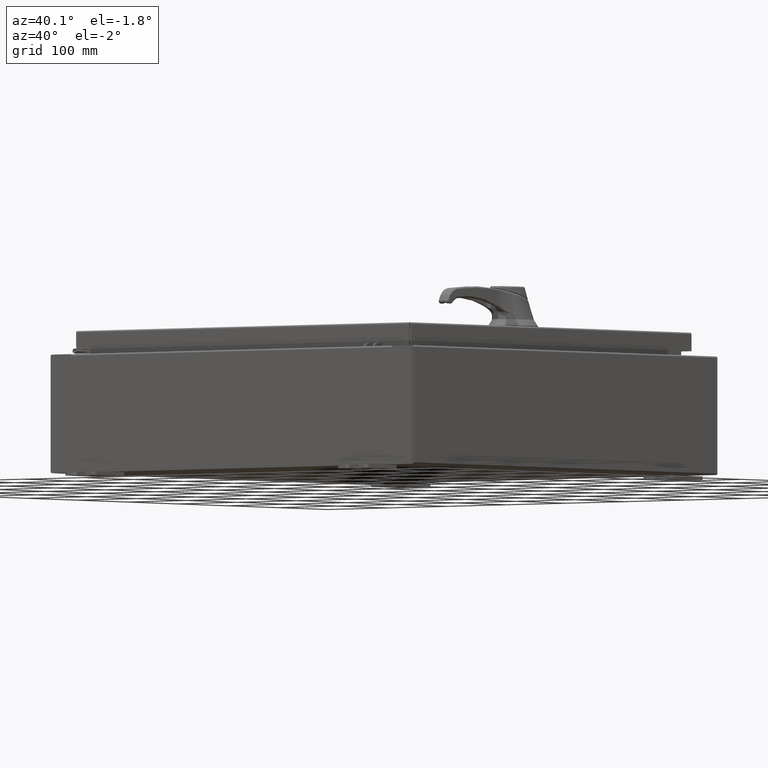
[diagram: clean part render]
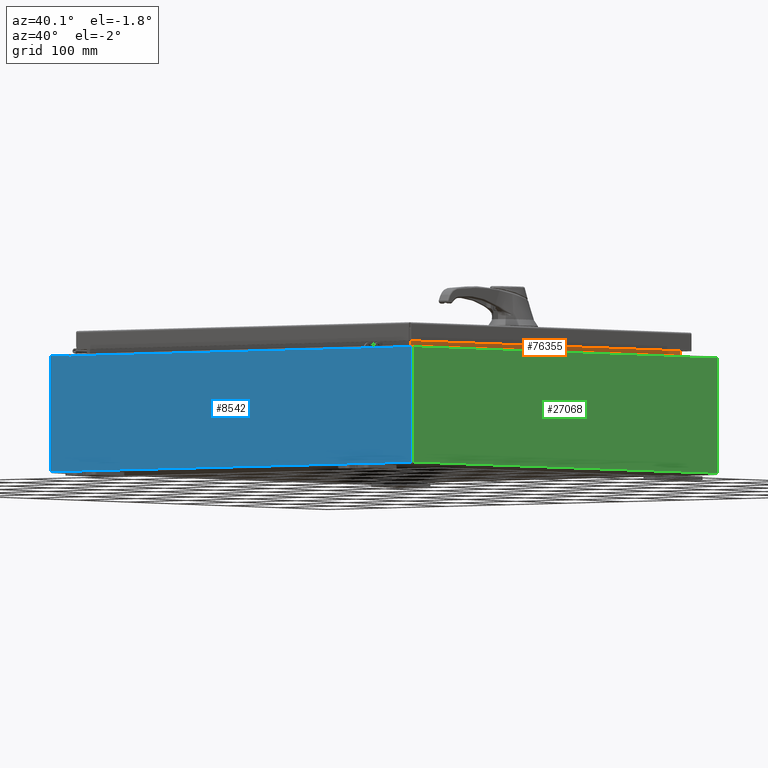
[diagram: same view with three faces highlighted in distinct colors, each labeled with its STEP entity id]
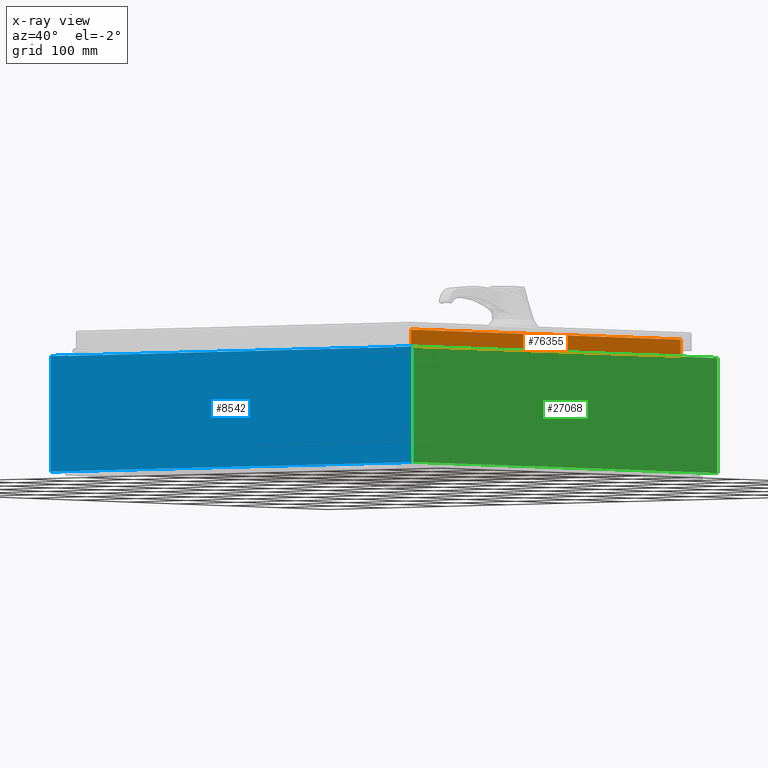
[diagram: x-ray of the same camera — body ghosted, the three highlighted faces saturated]
A machine part, auxiliary view with three faces highlighted in distinct colors.
The next image is the same camera in x-ray (body ghosted, the three faces saturated) — at least one of them is partly hidden behind the body in this view.
Their STEP definitions:

[orange] entity #76355 — the highlighted planar face has unit normal (1, 0, -0).
#591 = VERTEX_POINT ( 'NONE', #21468 ) ;
#931 = LINE ( 'NONE', #56614, #47064 ) ;
#9304 = CARTESIAN_POINT ( 'NONE',  ( 10.69969999999999100, 0.0000000000000000000, -5.054352789851418700E-014 ) ) ;
#10650 = DIRECTION ( 'NONE',  ( -4.723826639860392000E-015, -0.0000000000000000000, -1.000000000000000000 ) ) ;
#13081 = VECTOR ( 'NONE', #10650, 39.37007874015748100 ) ;
#14824 = VECTOR ( 'NONE', #28298, 39.37007874015748100 ) ;
#15812 = LINE ( 'NONE', #71321, #13081 ) ;
#17228 = DIRECTION ( 'NONE',  ( 1.031494227696241200E-016, -1.000000000000000000, 0.0000000000000000000 ) ) ;
#18004 = DIRECTION ( 'NONE',  ( -4.723826639860392000E-015, 0.0000000000000000000, -1.000000000000000000 ) ) ;
#21468 = CARTESIAN_POINT ( 'NONE',  ( 10.69970000000002300, -10.59375000000000200, 6.762900000000009900 ) ) ;
#25942 = CARTESIAN_POINT ( 'NONE',  ( 10.69970000000002000, 10.59374999999999600, 5.938300000000010600 ) ) ;
#26661 = VERTEX_POINT ( 'NONE', #80198 ) ;
#28298 = DIRECTION ( 'NONE',  ( 4.723826639860397600E-015, -0.0000000000000000000, 1.000000000000000000 ) ) ;
#37916 = CARTESIAN_POINT ( 'NONE',  ( 10.69970000000002100, 10.59374999999999600, 6.762900000000009900 ) ) ;
#39610 = EDGE_CURVE ( 'NONE', #26661, #591, #86758, .T. ) ;
#42765 = EDGE_CURVE ( 'NONE', #591, #102205, #931, .T. ) ;
#45194 = EDGE_CURVE ( 'NONE', #80962, #26661, #109061, .T. ) ;
#47064 = VECTOR ( 'NONE', #108431, 39.37007874015748100 ) ;
#53608 = AXIS2_PLACEMENT_3D ( 'NONE', #9304, #69996, #18004 ) ;
#53948 = EDGE_LOOP ( 'NONE', ( #82929, #67072, #67250, #86122 ) ) ;
#56614 = CARTESIAN_POINT ( 'NONE',  ( 10.69970000000002100, -10.59375000000000000, 6.762900000000009900 ) ) ;
#63069 = VECTOR ( 'NONE', #17228, 39.37007874015748100 ) ;
#67072 = ORIENTED_EDGE ( 'NONE', *, *, #42765, .F. ) ;
#67250 = ORIENTED_EDGE ( 'NONE', *, *, #39610, .F. ) ;
#69996 = DIRECTION ( 'NONE',  ( 1.000000000000000000, 0.0000000000000000000, -4.723826639860392000E-015 ) ) ;
#71321 = CARTESIAN_POINT ( 'NONE',  ( 10.69970000000002000, 10.59374999999999600, 5.925300000000009800 ) ) ;
#76355 = ADVANCED_FACE ( 'NONE', ( #101087 ), #77941, .T. ) ;
#77941 = PLANE ( 'NONE',  #53608 ) ;
#80198 = CARTESIAN_POINT ( 'NONE',  ( 10.69970000000002000, -10.59375000000000200, 5.938300000000010600 ) ) ;
#80962 = VERTEX_POINT ( 'NONE', #83651 ) ;
#82929 = ORIENTED_EDGE ( 'NONE', *, *, #92476, .F. ) ;
#83651 = CARTESIAN_POINT ( 'NONE',  ( 10.69970000000002000, 10.59374999999999300, 5.938300000000010600 ) ) ;
#86122 = ORIENTED_EDGE ( 'NONE', *, *, #45194, .F. ) ;
#86758 = LINE ( 'NONE', #105206, #14824 ) ;
#92476 = EDGE_CURVE ( 'NONE', #102205, #80962, #15812, .T. ) ;
#101087 = FACE_OUTER_BOUND ( 'NONE', #53948, .T. ) ;
#102205 = VERTEX_POINT ( 'NONE', #37916 ) ;
#105206 = CARTESIAN_POINT ( 'NONE',  ( 10.69970000000002300, -10.59375000000000200, 6.850600000000010700 ) ) ;
#108431 = DIRECTION ( 'NONE',  ( 0.0000000000000000000, 1.000000000000000000, 0.0000000000000000000 ) ) ;
#109061 = LINE ( 'NONE', #25942, #63069 ) ;

[blue] entity #8542 — the highlighted planar face has unit normal (-0, 1, -0).
#501 = LINE ( 'NONE', #64084, #66973 ) ;
#1459 = DIRECTION ( 'NONE',  ( 0.0000000000000000000, 0.0000000000000000000, -1.000000000000000000 ) ) ;
#2741 = DIRECTION ( 'NONE',  ( 0.0000000000000000000, 0.0000000000000000000, -1.000000000000000000 ) ) ;
#3192 = CARTESIAN_POINT ( 'NONE',  ( 0.0000000000000000000, 0.0000000000000000000, 0.0000000000000000000 ) ) ;
#6115 = VECTOR ( 'NONE', #1459, 39.37007874015748100 ) ;
#7292 = VERTEX_POINT ( 'NONE', #108934 ) ;
#7342 = VECTOR ( 'NONE', #86924, 39.37007874015748100 ) ;
#8494 = DIRECTION ( 'NONE',  ( -0.0000000000000000000, -0.0000000000000000000, 1.000000000000000000 ) ) ;
#8542 = ADVANCED_FACE ( 'NONE', ( #46780 ), #90005, .F. ) ;
#8778 = CARTESIAN_POINT ( 'NONE',  ( -11.92530000000000000, 0.0000000000000000000, -2.925299999999999600 ) ) ;
#9682 = ORIENTED_EDGE ( 'NONE', *, *, #47996, .F. ) ;
#9922 = CARTESIAN_POINT ( 'NONE',  ( -10.65587500000000200, 0.0000000000000000000, 2.874950000000000600 ) ) ;
#13138 = ORIENTED_EDGE ( 'NONE', *, *, #27235, .F. ) ;
#13987 = VECTOR ( 'NONE', #54376, 39.37007874015748100 ) ;
#14638 = VERTEX_POINT ( 'NONE', #34946 ) ;
#15046 = VERTEX_POINT ( 'NONE', #33674 ) ;
#17799 = VECTOR ( 'NONE', #68496, 39.37007874015748100 ) ;
#18055 = EDGE_CURVE ( 'NONE', #87764, #14638, #103762, .T. ) ;
#18649 = DIRECTION ( 'NONE',  ( 0.0000000000000000000, 0.0000000000000000000, -1.000000000000000000 ) ) ;
#19281 = DIRECTION ( 'NONE',  ( 1.000000000000000000, 0.0000000000000000000, 0.0000000000000000000 ) ) ;
#19442 = LINE ( 'NONE', #97558, #13987 ) ;
#22085 = EDGE_CURVE ( 'NONE', #87764, #106208, #96522, .T. ) ;
#24567 = EDGE_CURVE ( 'NONE', #95658, #106208, #19442, .T. ) ;
#24578 = DIRECTION ( 'NONE',  ( 1.000000000000000000, 0.0000000000000000000, 0.0000000000000000000 ) ) ;
#25254 = CARTESIAN_POINT ( 'NONE',  ( 11.92530000000000000, 0.0000000000000000000, 2.925300000000000500 ) ) ;
#26506 = CARTESIAN_POINT ( 'NONE',  ( -10.67455000000000200, 0.0000000000000000000, 2.874950000000000600 ) ) ;
#27235 = EDGE_CURVE ( 'NONE', #14638, #75552, #31316, .T. ) ;
#27603 = ORIENTED_EDGE ( 'NONE', *, *, #32886, .F. ) ;
#29836 = ORIENTED_EDGE ( 'NONE', *, *, #22085, .T. ) ;
#29871 = CARTESIAN_POINT ( 'NONE',  ( -10.67455000000000200, 0.0000000000000000000, 2.925300000000000500 ) ) ;
#31316 = CIRCLE ( 'NONE', #46828, 0.01867499999999949400 ) ;
#32886 = EDGE_CURVE ( 'NONE', #49922, #95658, #47140, .T. ) ;
#33157 = LINE ( 'NONE', #8778, #7342 ) ;
#33674 = CARTESIAN_POINT ( 'NONE',  ( 11.92530000000000000, 0.0000000000000000000, -2.925299999999999600 ) ) ;
#34946 = CARTESIAN_POINT ( 'NONE',  ( -10.63720000000000400, -0.0000000000000000000, 2.874950000000000600 ) ) ;
#35120 = VECTOR ( 'NONE', #54619, 39.37007874015748100 ) ;
#36966 = CARTESIAN_POINT ( 'NONE',  ( -10.63720000000000400, 1.024442997624098700E-016, 2.912300000000000600 ) ) ;
#37818 = CARTESIAN_POINT ( 'NONE',  ( 10.63720000000000400, 0.0000000000000000000, 2.874950000000000600 ) ) ;
#38998 = LINE ( 'NONE', #60491, #108028 ) ;
#41992 = DIRECTION ( 'NONE',  ( 1.000000000000000000, 0.0000000000000000000, 0.0000000000000000000 ) ) ;
#46641 = DIRECTION ( 'NONE',  ( 0.0000000000000000000, 0.0000000000000000000, 1.000000000000000000 ) ) ;
#46780 = FACE_OUTER_BOUND ( 'NONE', #53079, .T. ) ;
#46828 = AXIS2_PLACEMENT_3D ( 'NONE', #9922, #70612, #18649 ) ;
#46829 = DIRECTION ( 'NONE',  ( 0.0000000000000000000, -0.0000000000000000000, -1.000000000000000000 ) ) ;
#47140 = CIRCLE ( 'NONE', #103729, 0.01867499999999949400 ) ;
#47996 = EDGE_CURVE ( 'NONE', #75552, #57593, #501, .T. ) ;
#49314 = ORIENTED_EDGE ( 'NONE', *, *, #90213, .F. ) ;
#49922 = VERTEX_POINT ( 'NONE', #104682 ) ;
#50758 = CARTESIAN_POINT ( 'NONE',  ( -10.63720000000000400, 1.024442997624098700E-016, 2.912300000000000600 ) ) ;
#51255 = LINE ( 'NONE', #88698, #97356 ) ;
#53079 = EDGE_LOOP ( 'NONE', ( #9682, #13138, #55456, #29836, #102700, #27603, #49314, #103952, #74177, #90153, #79869, #94570 ) ) ;
#54376 = DIRECTION ( 'NONE',  ( 0.0000000000000000000, 0.0000000000000000000, 1.000000000000000000 ) ) ;
#54619 = DIRECTION ( 'NONE',  ( -4.340572780400004900E-014, 0.0000000000000000000, -1.000000000000000000 ) ) ;
#54682 = DIRECTION ( 'NONE',  ( -0.0000000000000000000, 1.000000000000000000, -0.0000000000000000000 ) ) ;
#54805 = VECTOR ( 'NONE', #41992, 39.37007874015748100 ) ;
#55456 = ORIENTED_EDGE ( 'NONE', *, *, #18055, .F. ) ;
#57348 = EDGE_CURVE ( 'NONE', #108519, #101888, #51255, .T. ) ;
#57593 = VERTEX_POINT ( 'NONE', #29871 ) ;
#60491 = CARTESIAN_POINT ( 'NONE',  ( -11.92530000000000000, 0.0000000000000000000, 2.925300000000000500 ) ) ;
#64084 = CARTESIAN_POINT ( 'NONE',  ( -10.67455000000000200, -0.0000000000000000000, 0.0000000000000000000 ) ) ;
#66973 = VECTOR ( 'NONE', #46641, 39.37007874015748100 ) ;
#68496 = DIRECTION ( 'NONE',  ( 0.0000000000000000000, 0.0000000000000000000, -1.000000000000000000 ) ) ;
#70612 = DIRECTION ( 'NONE',  ( -0.0000000000000000000, 1.000000000000000000, -0.0000000000000000000 ) ) ;
#71260 = VERTEX_POINT ( 'NONE', #110754 ) ;
#74177 = ORIENTED_EDGE ( 'NONE', *, *, #81096, .T. ) ;
#74209 = CARTESIAN_POINT ( 'NONE',  ( -11.92530000000000000, 0.0000000000000000000, 2.925300000000000500 ) ) ;
#75552 = VERTEX_POINT ( 'NONE', #26506 ) ;
#76186 = VECTOR ( 'NONE', #24578, 39.37007874015748100 ) ;
#77361 = CARTESIAN_POINT ( 'NONE',  ( 11.92530000000000000, 0.0000000000000000000, 2.925300000000000500 ) ) ;
#77723 = EDGE_CURVE ( 'NONE', #15046, #71260, #33157, .T. ) ;
#79869 = ORIENTED_EDGE ( 'NONE', *, *, #87611, .T. ) ;
#81096 = EDGE_CURVE ( 'NONE', #101888, #15046, #109974, .T. ) ;
#81935 = CARTESIAN_POINT ( 'NONE',  ( 10.63720000000000400, 0.0000000000000000000, 2.912300000000000600 ) ) ;
#83933 = LINE ( 'NONE', #106492, #35120 ) ;
#86924 = DIRECTION ( 'NONE',  ( -1.000000000000000000, -0.0000000000000000000, -0.0000000000000000000 ) ) ;
#87611 = EDGE_CURVE ( 'NONE', #71260, #7292, #38998, .T. ) ;
#87764 = VERTEX_POINT ( 'NONE', #36966 ) ;
#88698 = CARTESIAN_POINT ( 'NONE',  ( -11.92530000000000000, 0.0000000000000000000, 2.925300000000000500 ) ) ;
#90005 = PLANE ( 'NONE',  #94136 ) ;
#90153 = ORIENTED_EDGE ( 'NONE', *, *, #77723, .T. ) ;
#90213 = EDGE_CURVE ( 'NONE', #108519, #49922, #83933, .T. ) ;
#91563 = CARTESIAN_POINT ( 'NONE',  ( 10.67455000000000200, 0.0000000000000000000, 2.925300000000000500 ) ) ;
#94136 = AXIS2_PLACEMENT_3D ( 'NONE', #3192, #98701, #46829 ) ;
#94570 = ORIENTED_EDGE ( 'NONE', *, *, #110008, .T. ) ;
#95658 = VERTEX_POINT ( 'NONE', #37818 ) ;
#96522 = LINE ( 'NONE', #50758, #76186 ) ;
#96975 = CARTESIAN_POINT ( 'NONE',  ( -10.63720000000000400, -0.0000000000000000000, 0.0000000000000000000 ) ) ;
#97356 = VECTOR ( 'NONE', #19281, 39.37007874015748100 ) ;
#97558 = CARTESIAN_POINT ( 'NONE',  ( 10.63720000000000400, 0.0000000000000000000, 0.0000000000000000000 ) ) ;
#98701 = DIRECTION ( 'NONE',  ( 0.0000000000000000000, -1.000000000000000000, 0.0000000000000000000 ) ) ;
#100863 = LINE ( 'NONE', #74209, #54805 ) ;
#101888 = VERTEX_POINT ( 'NONE', #77361 ) ;
#102700 = ORIENTED_EDGE ( 'NONE', *, *, #24567, .F. ) ;
#103729 = AXIS2_PLACEMENT_3D ( 'NONE', #106560, #54682, #2741 ) ;
#103762 = LINE ( 'NONE', #96975, #6115 ) ;
#103952 = ORIENTED_EDGE ( 'NONE', *, *, #57348, .T. ) ;
#104682 = CARTESIAN_POINT ( 'NONE',  ( 10.67455000000000200, 0.0000000000000000000, 2.874950000000000600 ) ) ;
#106208 = VERTEX_POINT ( 'NONE', #81935 ) ;
#106492 = CARTESIAN_POINT ( 'NONE',  ( 10.67454999999987700, -0.0000000000000000000, -4.633366117301834200E-013 ) ) ;
#106560 = CARTESIAN_POINT ( 'NONE',  ( 10.65587500000000200, 0.0000000000000000000, 2.874950000000000600 ) ) ;
#108028 = VECTOR ( 'NONE', #8494, 39.37007874015748100 ) ;
#108519 = VERTEX_POINT ( 'NONE', #91563 ) ;
#108934 = CARTESIAN_POINT ( 'NONE',  ( -11.92530000000000000, 0.0000000000000000000, 2.925300000000000500 ) ) ;
#109974 = LINE ( 'NONE', #25254, #17799 ) ;
#110008 = EDGE_CURVE ( 'NONE', #7292, #57593, #100863, .T. ) ;
#110754 = CARTESIAN_POINT ( 'NONE',  ( -11.92530000000000000, 0.0000000000000000000, -2.925299999999999600 ) ) ;

[green] entity #27068 — the highlighted planar face has unit normal (-1, 0, 0).
#788 = EDGE_LOOP ( 'NONE', ( #95501, #12429, #48360, #37165 ) ) ;
#5907 = CARTESIAN_POINT ( 'NONE',  ( 11.99999999999999800, -11.92530000000000400, 0.01299999999999986400 ) ) ;
#6837 = DIRECTION ( 'NONE',  ( -0.0000000000000000000, -1.000000000000000000, -0.0000000000000000000 ) ) ;
#8394 = DIRECTION ( 'NONE',  ( -1.000000000000000000, 0.0000000000000000000, 3.319545939341922000E-015 ) ) ;
#12429 = ORIENTED_EDGE ( 'NONE', *, *, #71726, .T. ) ;
#13983 = LINE ( 'NONE', #56703, #103454 ) ;
#15726 = CARTESIAN_POINT ( 'NONE',  ( 11.99999999999999800, 11.92529999999999800, -4.009536492811464200E-014 ) ) ;
#17717 = AXIS2_PLACEMENT_3D ( 'NONE', #60392, #8394, #69106 ) ;
#18503 = CARTESIAN_POINT ( 'NONE',  ( 11.99999999999999800, -11.92530000000000400, 0.01299999999999985900 ) ) ;
#23154 = LINE ( 'NONE', #5907, #48942 ) ;
#23804 = VERTEX_POINT ( 'NONE', #18503 ) ;
#27068 = ADVANCED_FACE ( 'NONE', ( #105887 ), #41852, .F. ) ;
#27304 = VERTEX_POINT ( 'NONE', #79703 ) ;
#33137 = LINE ( 'NONE', #110626, #96867 ) ;
#36934 = VECTOR ( 'NONE', #76374, 39.37007874015748100 ) ;
#37165 = ORIENTED_EDGE ( 'NONE', *, *, #82796, .T. ) ;
#39601 = VERTEX_POINT ( 'NONE', #71523 ) ;
#41852 = PLANE ( 'NONE',  #17717 ) ;
#46135 = LINE ( 'NONE', #15726, #36934 ) ;
#47983 = DIRECTION ( 'NONE',  ( -3.319545939341922800E-015, 0.0000000000000000000, -1.000000000000000000 ) ) ;
#48360 = ORIENTED_EDGE ( 'NONE', *, *, #74520, .F. ) ;
#48942 = VECTOR ( 'NONE', #109724, 39.37007874015748100 ) ;
#56703 = CARTESIAN_POINT ( 'NONE',  ( 11.99999999999999800, -11.92530000000000400, -4.009536492811464200E-014 ) ) ;
#60392 = CARTESIAN_POINT ( 'NONE',  ( 11.99999999999999800, 0.0000000000000000000, -4.009536492811464200E-014 ) ) ;
#64642 = CARTESIAN_POINT ( 'NONE',  ( 12.00000000000001800, -11.92530000000000400, 5.837600000000001000 ) ) ;
#68627 = VERTEX_POINT ( 'NONE', #64642 ) ;
#69106 = DIRECTION ( 'NONE',  ( 3.319545939341922000E-015, 0.0000000000000000000, 1.000000000000000000 ) ) ;
#71523 = CARTESIAN_POINT ( 'NONE',  ( 12.00000000000001800, 11.92529999999999600, 5.837600000000001000 ) ) ;
#71726 = EDGE_CURVE ( 'NONE', #68627, #23804, #13983, .T. ) ;
#74520 = EDGE_CURVE ( 'NONE', #27304, #23804, #23154, .T. ) ;
#76374 = DIRECTION ( 'NONE',  ( 3.319545939341922800E-015, 0.0000000000000000000, 1.000000000000000000 ) ) ;
#79703 = CARTESIAN_POINT ( 'NONE',  ( 11.99999999999999800, 11.92529999999999600, 0.01299999999999986400 ) ) ;
#82796 = EDGE_CURVE ( 'NONE', #27304, #39601, #46135, .T. ) ;
#95265 = EDGE_CURVE ( 'NONE', #39601, #68627, #33137, .T. ) ;
#95501 = ORIENTED_EDGE ( 'NONE', *, *, #95265, .T. ) ;
#96867 = VECTOR ( 'NONE', #6837, 39.37007874015748100 ) ;
#103454 = VECTOR ( 'NONE', #47983, 39.37007874015748100 ) ;
#105887 = FACE_OUTER_BOUND ( 'NONE', #788, .T. ) ;
#109724 = DIRECTION ( 'NONE',  ( -0.0000000000000000000, -1.000000000000000000, -0.0000000000000000000 ) ) ;
#110626 = CARTESIAN_POINT ( 'NONE',  ( 12.00000000000001800, 11.92529999999999800, 5.837600000000001000 ) ) ;